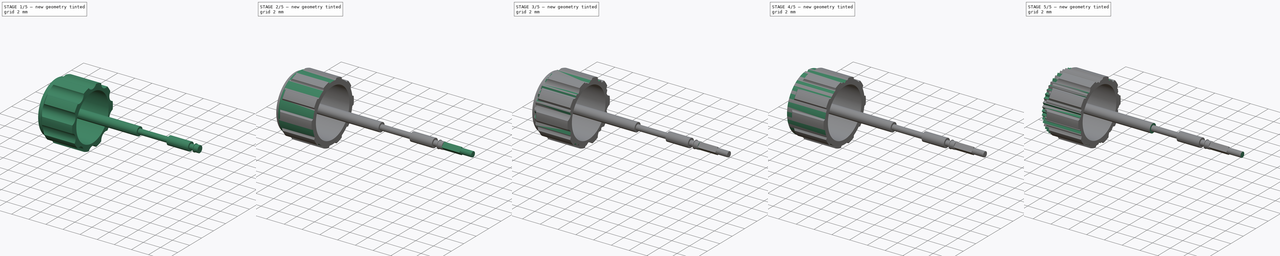
[diagram: build sequence overview — one tinted view per stage of 5, left to right]
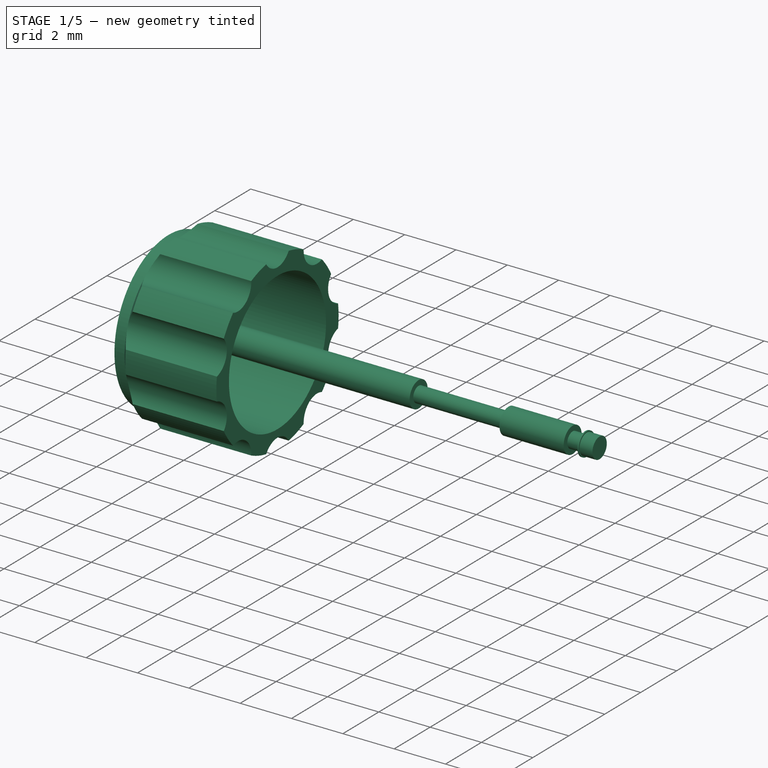
[diagram: stage 1 of 5 — iso view after this stage's code; geometry added in this stage tinted green]
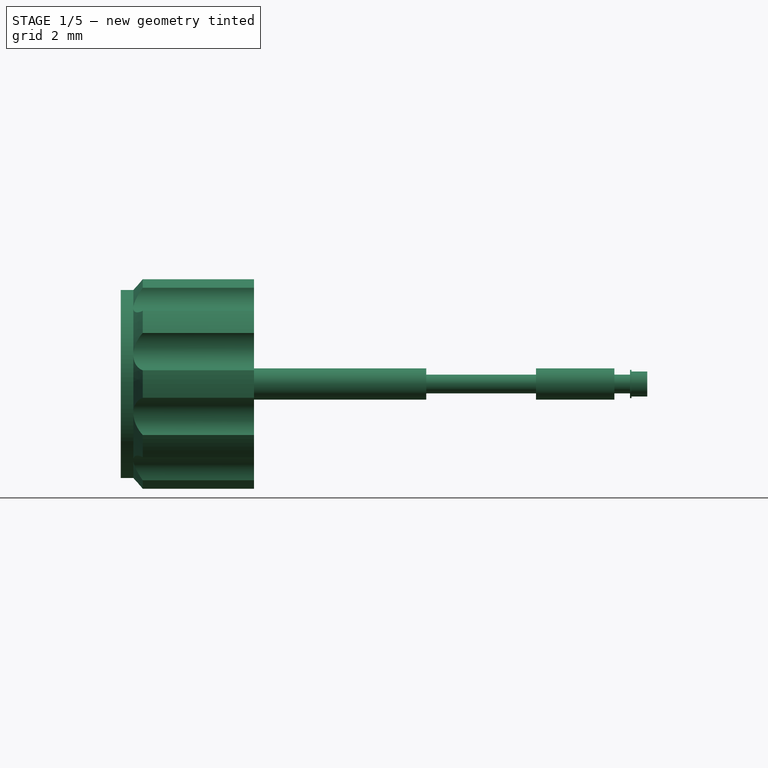
[diagram: stage 1 of 5 — front view after this stage's code; geometry added in this stage tinted green]
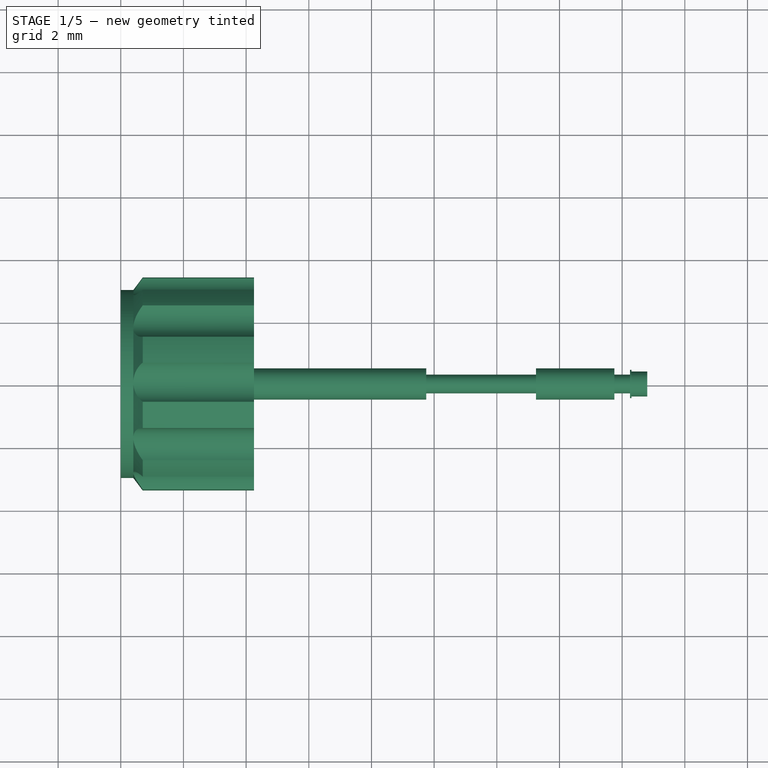
[diagram: stage 1 of 5 — top view after this stage's code; geometry added in this stage tinted green]
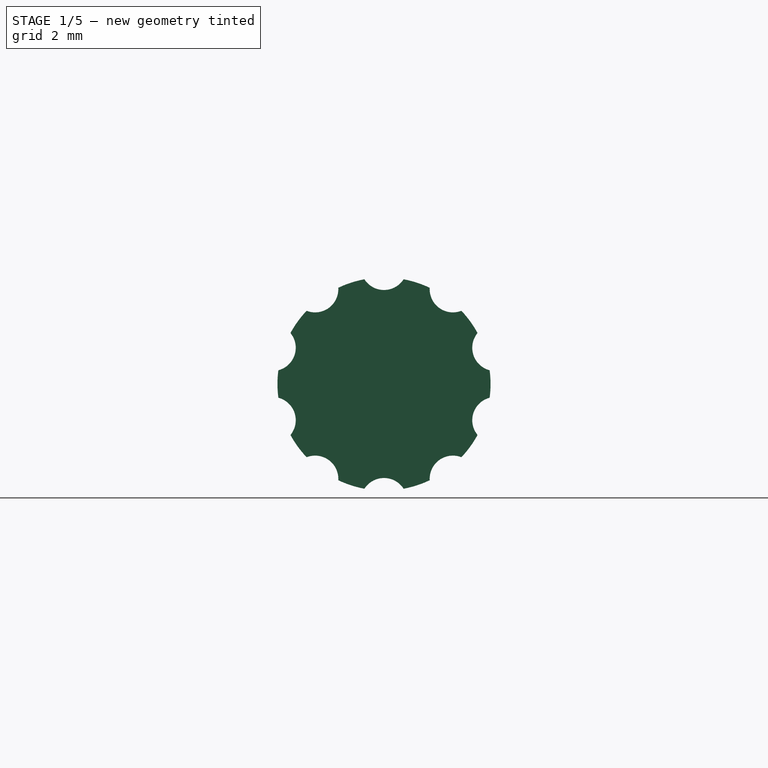
[diagram: stage 1 of 5 — right view after this stage's code; geometry added in this stage tinted green]
FCSTD DOCUMENT  (FreeCAD 0.19R20415 (Git))
Label: Vostok_Amphibia_Crown_1
License: All rights reserved
LicenseURL: http://en.wikipedia.org/wiki/All_rights_reserved
objects: Sketcher::SketchObject×16, PartDesign::Revolution×6, PartDesign::Pad×6, PartDesign::Pocket×4, PartDesign::PolarPattern×3, PartDesign::Body×3
note: 54 computed .brp shape members not serialized (recipe doc carries the construction recipe); baked Part::Feature solids carry a one-line shape summary decoded from their .brp

FEATURE [PartDesign::Body] Body005  label="Crown001"
  Group = -> [Sketch031,Sketch030,Sketch032,Sketch033,Sketch034,Revolution002,Sketch036,Pocket001,Pocket002,PolarPattern001,Revolution003,Pad002,Pad003]
  Origin = -> Origin005
  Tip = -> Pad003
FEATURE [Sketcher::SketchObject] Sketch037
  AttachmentOffset = pos=(0.5,0,0) rot=(0,0,1;0rad)
  MapMode = 5
  Placement = pos=(0.5,0,0) rot=(1,0,0;1.5708rad)
  Support = -> [XZ_Plane006]
  sketch-geometry (14):
    g0: LineSegment StartX=16.3 StartY=0 StartZ=0 EndX=16.3 EndY=0.4 EndZ=0
    g1: LineSegment StartX=16.3 StartY=0.4 StartZ=0 EndX=15.8 EndY=0.4 EndZ=0
    g2: LineSegment StartX=15.8 StartY=0.4 StartZ=0 EndX=15.8 EndY=0.45 EndZ=0
    g3: LineSegment StartX=15.8 StartY=0.45 StartZ=0 EndX=15.75 EndY=0.45 EndZ=0
    g4: LineSegment StartX=15.75 StartY=0.45 StartZ=0 EndX=15.75 EndY=0.3 EndZ=0
    g5: LineSegment StartX=15.75 StartY=0.3 StartZ=0 EndX=15.25 EndY=0.3 EndZ=0
    g6: LineSegment StartX=15.25 StartY=0.3 StartZ=0 EndX=15.25 EndY=0.5 EndZ=0
    g7: LineSegment StartX=15.25 StartY=0.5 StartZ=0 EndX=12.75 EndY=0.5 EndZ=0
    g8: LineSegment StartX=12.75 StartY=0.5 StartZ=0 EndX=12.75 EndY=0.3 EndZ=0
    g9: LineSegment StartX=12.75 StartY=0.3 StartZ=0 EndX=9.25 EndY=0.3 EndZ=0
    g10: LineSegment StartX=9.25 StartY=0.3 StartZ=0 EndX=9.25 EndY=0.5 EndZ=0
    g11: LineSegment StartX=9.25 StartY=0.5 StartZ=0 EndX=0 EndY=0.5 EndZ=0
    g12: LineSegment StartX=0 StartY=0.5 StartZ=0 EndX=0 EndY=0 EndZ=0
    g13: LineSegment StartX=0 StartY=0 StartZ=0 EndX=16.3 EndY=0 EndZ=0
  constraints (41):
    c: DistanceX(g13,g13) = 16.3
    c: DistanceY(g10) = 0.5
    c: DistanceY(g8) = 0.3
    c: Coincident(g11,g10)
    c: Vertical(g10)
    c: DistanceX(g11,g11) = 9.25
    c: Coincident(g11,g12)
    c: Vertical(g12)
    c: Coincident(g12,g13)
    c: Coincident(g-1,g12)
    c: Coincident(g9,g10)
    c: DistanceX(g9,g9) = 3.5
    c: Coincident(g9,g8)
    c: Vertical(g8)
    c: Horizontal(g7,g10)
    c: Coincident(g7,g8)
    c: DistanceX(g7,g7) = 2.5
    c: DistanceY(g6,g6) = 0.2
    c: Coincident(g6,g7)
    c: Horizontal(g7)
    c: Coincident(g5,g6)
    c: Vertical(g6)
    c: Horizontal(g5)
    c: DistanceX(g5,g4) = 0.5
    c: Coincident(g5,g4)
    c: DistanceY(g4,g3) = 0.15
    c: Vertical(g4)
    c: Coincident(g3,g4)
    c: DistanceX(g3,g3) = 0.05
    c: Vertical(g2)
    c: Coincident(g2,g3)
    c: Horizontal(g3)
    c: DistanceY(g2,g2) = 0.05
    c: Coincident(g1,g2)
    c: Horizontal(g1)
    c: Coincident(g0,g1)
    c: Coincident(g13,g0)
    c: Horizontal(g9)
    c: Horizontal(g11)
    c: Horizontal(g13)
    c: Vertical(g0)
FEATURE [Sketcher::SketchObject] Sketch038
  MapMode = 5
  Placement = pos=(0,0,0) rot=(-0.57735,0.57735,0.57735;4.18879rad)
  Support = -> [YZ_Plane007]
  sketch-geometry (7):
    g0: GeomPoint X=0 Y=3.4 Z=0
    g1: LineSegment StartX=-0.625 StartY=3.34206 StartZ=0 EndX=-0.625 EndY=4.59206 EndZ=0
    g2: LineSegment StartX=-0.625 StartY=4.59206 StartZ=0 EndX=0.625 EndY=4.59206 EndZ=0
    g3: LineSegment StartX=0.625 StartY=4.59206 StartZ=0 EndX=0.625 EndY=3.34206 EndZ=0
    g4: ArcOfCircle [constr] CenterX=0 CenterY=0 CenterZ=0 NormalX=0 NormalY=0 NormalZ=1 AngleXU=0 Radius=3.4 StartAngle=1.38592 EndAngle=1.75567
    g5: ArcOfCircle CenterX=-2e-16 CenterY=3.74202 CenterZ=0 NormalX=0 NormalY=0 NormalZ=1 AngleXU=0 Radius=0.742017 StartAngle=3.71086 EndAngle=5.71392
    g6: GeomPoint X=0 Y=3 Z=0
  constraints (19):
    c: PointOnObject(g0,g-2)
    c: Vertical(g1)
    c: Coincident(g1,g2)
    c: Horizontal(g2)
    c: Coincident(g2,g3)
    c: Vertical(g3)
    c: Equal(g3,g2)
    c: Coincident(g4,g-1)
    c: Radius(g4) = 3.4
    c: PointOnObject(g0,g4)
    c: Symmetric(g3,g1,g-2)
    c: Coincident(g1,g4)
    c: Coincident(g4,g3)
    c: DistanceX(g1,g3) = 1.25
    c: Coincident(g5,g1)
    c: Coincident(g5,g3)
    c: PointOnObject(g6,g5)
    c: PointOnObject(g6,g-2)
    c: DistanceY(g6,g0) = 0.4
FEATURE [Sketcher::SketchObject] Sketch039
  AttachmentOffset = pos=(0,0,16.8) rot=(0,0,1;0rad)
  MapMode = 5
  Placement = pos=(16.8,-3.7e-15,3.7e-15) rot=(0.57735,0.57735,0.57735;2.0944rad)
  Support = -> [YZ_Plane007]
  sketch-geometry (4):
    g0: LineSegment StartX=-0.424264 StartY=0 StartZ=0 EndX=0 EndY=0.424264 EndZ=0
    g1: LineSegment StartX=0 StartY=0.424264 StartZ=0 EndX=0.424264 EndY=0 EndZ=0
    g2: LineSegment StartX=0.424264 StartY=0 StartZ=0 EndX=0 EndY=-0.424264 EndZ=0
    g3: LineSegment StartX=0 StartY=-0.424264 StartZ=0 EndX=-0.424264 EndY=0 EndZ=0
  constraints (11):
    c: PointOnObject(g0,g-1)
    c: PointOnObject(g0,g-2)
    c: Coincident(g0,g1)
    c: Coincident(g1,g2)
    c: PointOnObject(g2,g-2)
    c: Coincident(g2,g3)
    c: Coincident(g3,g0)
    c: Perpendicular(g1,g0)
    c: Perpendicular(g3,g2)
    c: Symmetric(g0,g1,g-1)
    c: Distance(g0) = 0.6
FEATURE [Sketcher::SketchObject] Sketch040
  MapMode = 5
  Placement = pos=(0,0,0) rot=(1,0,0;1.5708rad)
  Support = -> [XZ_Plane006]
  sketch-geometry (8):
    g0: LineSegment StartX=0.7 StartY=0 StartZ=0 EndX=0 EndY=0 EndZ=0
    g1: LineSegment StartX=4.25 StartY=3.4 StartZ=0 EndX=4.25 EndY=2.7 EndZ=0
    g2: LineSegment StartX=4.25 StartY=2.7 StartZ=0 EndX=0.7 EndY=2.7 EndZ=0
    g3: LineSegment StartX=0.7 StartY=2.7 StartZ=0 EndX=0.7 EndY=0 EndZ=0
    g4: LineSegment StartX=4.25 StartY=3.4 StartZ=0 EndX=0.7 EndY=3.4 EndZ=0
    g5: LineSegment StartX=0 StartY=0 StartZ=0 EndX=0 EndY=3 EndZ=0
    g6: LineSegment StartX=0 StartY=3 StartZ=0 EndX=0.4 EndY=3 EndZ=0
    g7: LineSegment StartX=0.4 StartY=3 StartZ=0 EndX=0.7 EndY=3.4 EndZ=0
  constraints (23):
    c: PointOnObject(g0,g-1)
    c: Coincident(g0,g-1)
    c: Vertical(g1)
    c: Coincident(g1,g2)
    c: Horizontal(g2)
    c: Coincident(g2,g3)
    c: Coincident(g3,g0)
    c: Vertical(g3)
    c: DistanceY(g1) = 2.7
    c: DistanceY(g1) = 3.4
    c: Equal(g0,g1)
    c: DistanceX(g0,g1) = 4.25
    c: Coincident(g1,g4)
    c: Horizontal(g4)
    c: Coincident(g0,g5)
    c: PointOnObject(g5,g-2)
    c: Coincident(g5,g6)
    c: Horizontal(g6)
    c: Coincident(g6,g7)
    c: Coincident(g7,g4)
    c: DistanceX(g6,g6) = 0.4
    c: DistanceX(g6,g4) = 0.3
    c: DistanceY(g5) = 3
FEATURE [Sketcher::SketchObject] Sketch042
  AttachmentOffset = pos=(0,0,18.8) rot=(0,0,1;0rad)
  MapMode = 5
  Placement = pos=(18.8,-4.2e-15,4.2e-15) rot=(0.57735,0.57735,0.57735;2.0944rad)
  Support = -> [YZ_Plane007]
  sketch-geometry (1):
    g0: Circle CenterX=0 CenterY=0 CenterZ=0 NormalX=0 NormalY=0 NormalZ=1 AngleXU=0 Radius=0.3
  constraints (2):
    c: Coincident(g0,g-1)
    c: Radius(g0) = 0.3
FEATURE [PartDesign::Revolution] Revolution005
  Angle = 360
  Axis = (1,0,0)
  Base = (0,0,0)
  Placement = pos=(0,0,0) rot=(1,0,0;1.5708rad)
  Profile = -> Sketch040
  ReferenceAxis = -> X_Axis006
  Reversed = true
FEATURE [PartDesign::Pocket] Pocket004
  BaseFeature = -> Revolution005
  Length = 5
  Length2 = 100
  Placement = pos=(0,0,0) rot=(1,0,0;1.5708rad)
  Profile = -> Sketch038
  Type = 0
FEATURE [PartDesign::PolarPattern] PolarPattern002
  Angle = 360
  Axis = -> Sketch038 [N_Axis]
  BaseFeature = -> Pocket004
  Occurrences = 10
  Originals = -> [Pocket004]
  Placement = pos=(0,0,0) rot=(1,0,0;1.5708rad)
FEATURE [PartDesign::Revolution] Revolution004
  Angle = 360
  Axis = (1,0,0)
  Base = (0,0,0)
  BaseFeature = -> PolarPattern002
  Placement = pos=(0,0,0) rot=(1,0,0;1.5708rad)
  Profile = -> Sketch037
  ReferenceAxis = -> X_Axis006
  Reversed = true
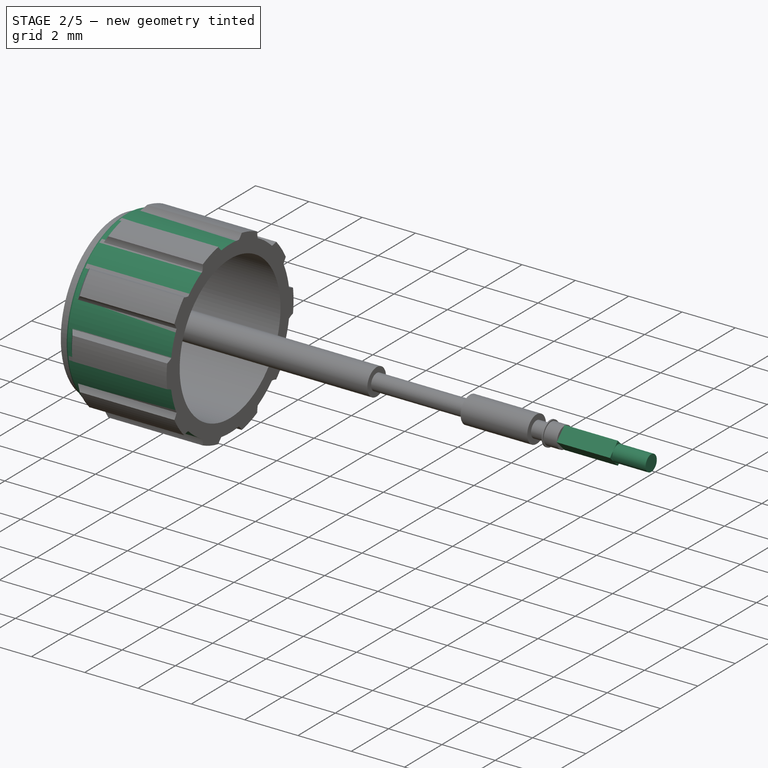
[diagram: stage 2 of 5 — iso view after this stage's code; geometry added in this stage tinted green]
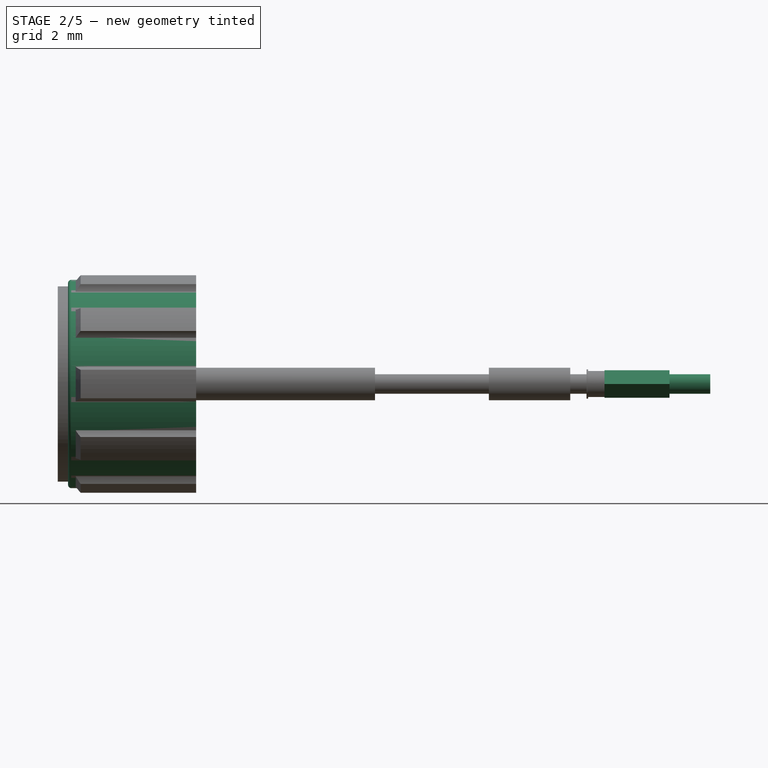
[diagram: stage 2 of 5 — front view after this stage's code; geometry added in this stage tinted green]
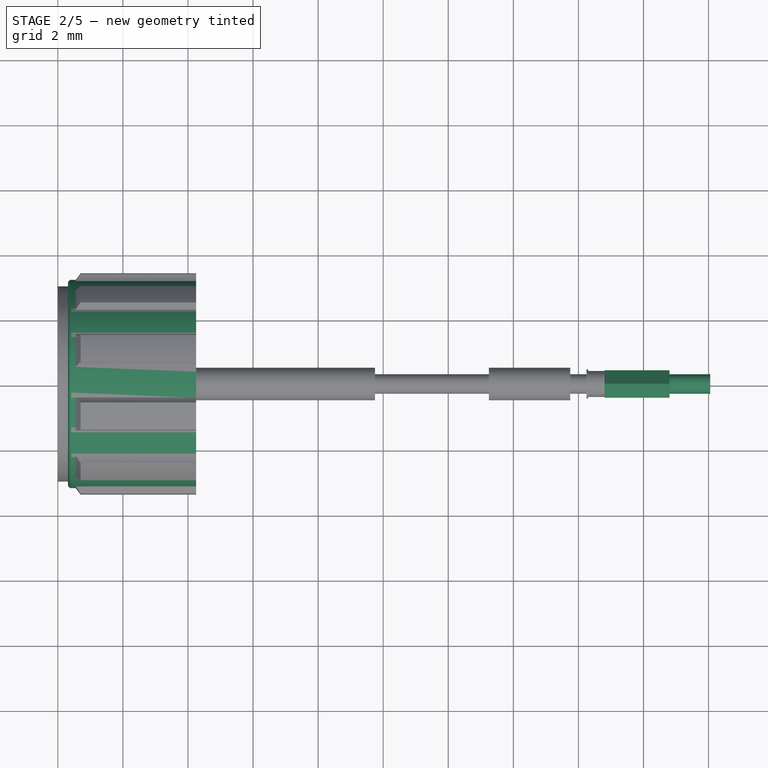
[diagram: stage 2 of 5 — top view after this stage's code; geometry added in this stage tinted green]
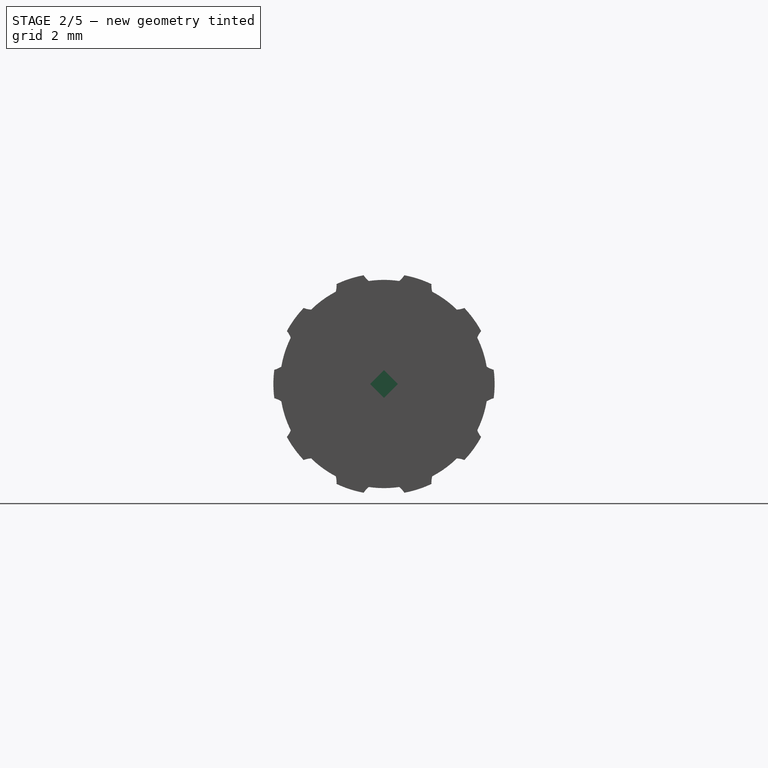
[diagram: stage 2 of 5 — right view after this stage's code; geometry added in this stage tinted green]
FEATURE [PartDesign::Body] Body004  label="Crown"
  Group = -> [Sketch025,Sketch,Sketch027,Sketch028,Sketch029,Revolution,Pocket,PolarPattern,Revolution001,Pad,Pad001]
  Origin = -> Origin004
  Tip = -> Pad001
FEATURE [Sketcher::SketchObject] Sketch030
  AttachmentOffset = pos=(0.5,0,0) rot=(0,0,1;0rad)
  MapMode = 5
  Placement = pos=(0.5,0,0) rot=(1,0,0;1.5708rad)
  Support = -> [XZ_Plane005]
  sketch-geometry (14):
    g0: LineSegment StartX=16.3 StartY=0 StartZ=0 EndX=16.3 EndY=0.4 EndZ=0
    g1: LineSegment StartX=16.3 StartY=0.4 StartZ=0 EndX=15.8 EndY=0.4 EndZ=0
    g2: LineSegment StartX=15.8 StartY=0.4 StartZ=0 EndX=15.8 EndY=0.45 EndZ=0
    g3: LineSegment StartX=15.8 StartY=0.45 StartZ=0 EndX=15.75 EndY=0.45 EndZ=0
    g4: LineSegment StartX=15.75 StartY=0.45 StartZ=0 EndX=15.75 EndY=0.3 EndZ=0
    g5: LineSegment StartX=15.75 StartY=0.3 StartZ=0 EndX=15.25 EndY=0.3 EndZ=0
    g6: LineSegment StartX=15.25 StartY=0.3 StartZ=0 EndX=15.25 EndY=0.5 EndZ=0
    g7: LineSegment StartX=15.25 StartY=0.5 StartZ=0 EndX=12.75 EndY=0.5 EndZ=0
    g8: LineSegment StartX=12.75 StartY=0.5 StartZ=0 EndX=12.75 EndY=0.3 EndZ=0
    g9: LineSegment StartX=12.75 StartY=0.3 StartZ=0 EndX=9.25 EndY=0.3 EndZ=0
    g10: LineSegment StartX=9.25 StartY=0.3 StartZ=0 EndX=9.25 EndY=0.5 EndZ=0
    g11: LineSegment StartX=9.25 StartY=0.5 StartZ=0 EndX=0 EndY=0.5 EndZ=0
    g12: LineSegment StartX=0 StartY=0.5 StartZ=0 EndX=0 EndY=0 EndZ=0
    g13: LineSegment StartX=0 StartY=0 StartZ=0 EndX=16.3 EndY=0 EndZ=0
  constraints (41):
    c: DistanceX(g13,g13) = 16.3
    c: DistanceY(g10) = 0.5
    c: DistanceY(g8) = 0.3
    c: Coincident(g11,g10)
    c: Vertical(g10)
    c: DistanceX(g11,g11) = 9.25
    c: Coincident(g11,g12)
    c: Vertical(g12)
    c: Coincident(g12,g13)
    c: Coincident(g-1,g12)
    c: Coincident(g9,g10)
    c: DistanceX(g9,g9) = 3.5
    c: Coincident(g9,g8)
    c: Vertical(g8)
    c: Horizontal(g7,g10)
    c: Coincident(g7,g8)
    c: DistanceX(g7,g7) = 2.5
    c: DistanceY(g6,g6) = 0.2
    c: Coincident(g6,g7)
    c: Horizontal(g7)
    c: Coincident(g5,g6)
    c: Vertical(g6)
    c: Horizontal(g5)
    c: DistanceX(g5,g4) = 0.5
    c: Coincident(g5,g4)
    c: DistanceY(g4,g3) = 0.15
    c: Vertical(g4)
    c: Coincident(g3,g4)
    c: DistanceX(g3,g3) = 0.05
    c: Vertical(g2)
    c: Coincident(g2,g3)
    c: Horizontal(g3)
    c: DistanceY(g2,g2) = 0.05
    c: Coincident(g1,g2)
    c: Horizontal(g1)
    c: Coincident(g0,g1)
    c: Coincident(g13,g0)
    c: Horizontal(g9)
    c: Horizontal(g11)
    c: Horizontal(g13)
    c: Vertical(g0)
FEATURE [Sketcher::SketchObject] Sketch031
  MapMode = 5
  Placement = pos=(0,0,0) rot=(-0.57735,0.57735,0.57735;4.18879rad)
  Support = -> [YZ_Plane005]
  sketch-geometry (8):
    g0: GeomPoint X=0 Y=3.2 Z=0
    g1: GeomPoint X=0 Y=2.95 Z=0
    g2: LineSegment StartX=-0.348374 StartY=3.18098 StartZ=0 EndX=-0.348374 EndY=3.87773 EndZ=0
    g3: LineSegment StartX=-0.348374 StartY=3.87773 StartZ=0 EndX=0.348374 EndY=3.87773 EndZ=0
    g4: LineSegment StartX=0.348374 StartY=3.87773 StartZ=0 EndX=0.348374 EndY=3.18098 EndZ=0
    g5: ArcOfCircle [constr] CenterX=0 CenterY=0 CenterZ=0 NormalX=0 NormalY=0 NormalZ=1 AngleXU=0 Radius=3.2 StartAngle=1.46171 EndAngle=1.67988
    g6: LineSegment StartX=-0.348374 StartY=3.18098 StartZ=0 EndX=0 EndY=2.95 EndZ=0
    g7: LineSegment StartX=0 StartY=2.95 StartZ=0 EndX=0.348374 EndY=3.18098 EndZ=0
  constraints (20):
    c: PointOnObject(g0,g-2)
    c: PointOnObject(g1,g-2)
    c: DistanceY(g1,g0) = 0.25
    c: Vertical(g2)
    c: Coincident(g2,g3)
    c: Horizontal(g3)
    c: Coincident(g3,g4)
    c: Vertical(g4)
    c: Equal(g4,g3)
    c: Coincident(g5,g-1)
    c: Radius(g5) = 3.2
    c: PointOnObject(g0,g5)
    c: Symmetric(g4,g2,g-2)
    c: Coincident(g2,g5)
    c: Coincident(g5,g4)
    c: Coincident(g7,g6)
    c: Coincident(g6,g1)
    c: Symmetric(g6,g7,g-2)
    c: Coincident(g6,g2)
    c: Angle(g5) = 0.218166
FEATURE [Sketcher::SketchObject] Sketch032
  AttachmentOffset = pos=(0,0,16.8) rot=(0,0,1;0rad)
  MapMode = 5
  Placement = pos=(16.8,-3.7e-15,3.7e-15) rot=(0.57735,0.57735,0.57735;2.0944rad)
  Support = -> [YZ_Plane005]
  sketch-geometry (4):
    g0: LineSegment StartX=-0.424264 StartY=0 StartZ=0 EndX=0 EndY=0.424264 EndZ=0
    g1: LineSegment StartX=0 StartY=0.424264 StartZ=0 EndX=0.424264 EndY=0 EndZ=0
    g2: LineSegment StartX=0.424264 StartY=0 StartZ=0 EndX=0 EndY=-0.424264 EndZ=0
    g3: LineSegment StartX=0 StartY=-0.424264 StartZ=0 EndX=-0.424264 EndY=0 EndZ=0
  constraints (11):
    c: PointOnObject(g0,g-1)
    c: PointOnObject(g0,g-2)
    c: Coincident(g0,g1)
    c: Coincident(g1,g2)
    c: PointOnObject(g2,g-2)
    c: Coincident(g2,g3)
    c: Coincident(g3,g0)
    c: Perpendicular(g1,g0)
    c: Perpendicular(g3,g2)
    c: Symmetric(g0,g1,g-1)
    c: Distance(g0) = 0.6
FEATURE [Sketcher::SketchObject] Sketch033
  AttachmentOffset = pos=(0,0,18.8) rot=(0,0,1;0rad)
  MapMode = 5
  Placement = pos=(18.8,-4.2e-15,4.2e-15) rot=(0.57735,0.57735,0.57735;2.0944rad)
  Support = -> [YZ_Plane005]
  sketch-geometry (1):
    g0: Circle CenterX=0 CenterY=0 CenterZ=0 NormalX=0 NormalY=0 NormalZ=1 AngleXU=0 Radius=0.3
  constraints (2):
    c: Coincident(g0,g-1)
    c: Radius(g0) = 0.3
FEATURE [Sketcher::SketchObject] Sketch034
  MapMode = 5
  Placement = pos=(0,0,0) rot=(1,0,0;1.5708rad)
  Support = -> [XZ_Plane005]
  sketch-geometry (10):
    g0: LineSegment StartX=0.5 StartY=0 StartZ=0 EndX=0 EndY=0 EndZ=0
    g1: LineSegment StartX=4.25 StartY=3.2 StartZ=0 EndX=4.25 EndY=2.7 EndZ=0
    g2: LineSegment StartX=4.25 StartY=2.7 StartZ=0 EndX=0.5 EndY=2.7 EndZ=0
    g3: LineSegment StartX=0.5 StartY=2.7 StartZ=0 EndX=0.5 EndY=0 EndZ=0
    g4: ArcOfCircle CenterX=20 CenterY=0 CenterZ=0 NormalX=0 NormalY=0 NormalZ=1 AngleXU=0 Radius=20 StartAngle=3.00144 EndAngle=3.14159
    g5: LineSegment StartX=4.25 StartY=3.2 StartZ=0 EndX=0.415138 EndY=3.2 EndZ=0
    g6: LineSegment StartX=0.315138 StartY=3.1 StartZ=0 EndX=0.315138 EndY=2.9 EndZ=0
    g7: ArcOfCircle CenterX=0.415138 CenterY=3.1 CenterZ=0 NormalX=0 NormalY=0 NormalZ=1 AngleXU=0 Radius=0.1 StartAngle=1.5708 EndAngle=3.14159
    g8: ArcOfCircle CenterX=0.295138 CenterY=2.9 CenterZ=0 NormalX=0 NormalY=0 NormalZ=1 AngleXU=0 Radius=0.02 StartAngle=4.71239 EndAngle=6.28319
    g9: ArcOfCircle CenterX=0.295138 CenterY=2.78 CenterZ=0 NormalX=0 NormalY=0 NormalZ=1 AngleXU=0 Radius=0.1 StartAngle=1.5708 EndAngle=3.00144
  constraints (28):
    c: PointOnObject(g0,g-1)
    c: Coincident(g0,g-1)
    c: Vertical(g1)
    c: Coincident(g1,g2)
    c: Horizontal(g2)
    c: Coincident(g2,g3)
    c: Coincident(g3,g0)
    c: Vertical(g3)
    c: DistanceY(g1) = 2.7
    c: DistanceY(g1) = 3.2
    c: Equal(g0,g1)
    c: DistanceX(g0,g1) = 4.25
    c: PointOnObject(g4,g-1)
    c: Coincident(g4,g0)
    c: Coincident(g1,g5)
    c: Horizontal(g5)
    c: Vertical(g6)
    c: Tangent(g5,g7) = -1.5708
    c: Tangent(g6,g7) = -1.5708
    c: Tangent(g6,g8) = 1.5708
    c: Tangent(g4,g9) = -1.5708
    c: Equal(g9,g7)
    c: Radius(g7) = 0.1
    c: Radius(g8) = 0.02
    c: DistanceY(g6,g6) = 0.2
    c: Radius(g4) = 20
    c: Tangent(g9,g8) = 1.5708
    c: Vertical(g9,g8)
FEATURE [PartDesign::Revolution] Revolution002
  Angle = 360
  Axis = (1,0,0)
  Base = (0,0,0)
  Placement = pos=(0,0,0) rot=(1,0,0;1.5708rad)
  Profile = -> Sketch034
  ReferenceAxis = -> X_Axis005
  Reversed = true
FEATURE [Sketcher::SketchObject] Sketch036
  MapMode = 5
  Placement = pos=(0,0,0) rot=(-0.57735,0.57735,0.57735;4.18879rad)
  Support = -> [YZ_Plane004]
  sketch-geometry (103):
    g0: BSplineCurve PolesCount=4 KnotsCount=2 Degree=3 IsPeriodic=0
    g1: BSplineCurve PolesCount=4 KnotsCount=2 Degree=3 IsPeriodic=0
    g2: BSplineCurve PolesCount=4 KnotsCount=2 Degree=3 IsPeriodic=0
    g3: BSplineCurve PolesCount=4 KnotsCount=2 Degree=3 IsPeriodic=0
    g4: BSplineCurve PolesCount=4 KnotsCount=2 Degree=3 IsPeriodic=0
    g5: BSplineCurve PolesCount=4 KnotsCount=2 Degree=3 IsPeriodic=0
    g6: BSplineCurve PolesCount=4 KnotsCount=2 Degree=3 IsPeriodic=0
    g7: BSplineCurve PolesCount=4 KnotsCount=2 Degree=3 IsPeriodic=0
    g8: BSplineCurve PolesCount=4 KnotsCount=2 Degree=3 IsPeriodic=0
    g9: BSplineCurve PolesCount=4 KnotsCount=2 Degree=3 IsPeriodic=0
    g10: BSplineCurve PolesCount=4 KnotsCount=2 Degree=3 IsPeriodic=0
    g11: BSplineCurve PolesCount=4 KnotsCount=2 Degree=3 IsPeriodic=0
    g12: BSplineCurve PolesCount=4 KnotsCount=2 Degree=3 IsPeriodic=0
    g13: BSplineCurve PolesCount=4 KnotsCount=2 Degree=3 IsPeriodic=0
    g14: BSplineCurve PolesCount=4 KnotsCount=2 Degree=3 IsPeriodic=0
    g15: BSplineCurve PolesCount=4 KnotsCount=2 Degree=3 IsPeriodic=0
    g16: BSplineCurve PolesCount=4 KnotsCount=2 Degree=3 IsPeriodic=0
    g17: BSplineCurve PolesCount=4 KnotsCount=2 Degree=3 IsPeriodic=0
    g18: BSplineCurve PolesCount=4 KnotsCount=2 Degree=3 IsPeriodic=0
    g19: BSplineCurve PolesCount=4 KnotsCount=2 Degree=3 IsPeriodic=0
    g20: BSplineCurve PolesCount=4 KnotsCount=2 Degree=3 IsPeriodic=0
    g21: BSplineCurve PolesCount=4 KnotsCount=2 Degree=3 IsPeriodic=0
    g22: BSplineCurve PolesCount=4 KnotsCount=2 Degree=3 IsPeriodic=0
    g23: BSplineCurve PolesCount=4 KnotsCount=2 Degree=3 IsPeriodic=0
    g24: BSplineCurve PolesCount=4 KnotsCount=2 Degree=3 IsPeriodic=0
    g25: BSplineCurve PolesCount=4 KnotsCount=2 Degree=3 IsPeriodic=0
    g26: BSplineCurve PolesCount=4 KnotsCount=2 Degree=3 IsPeriodic=0
    g27: BSplineCurve PolesCount=4 KnotsCount=2 Degree=3 IsPeriodic=0
    g28: BSplineCurve PolesCount=4 KnotsCount=2 Degree=3 IsPeriodic=0
    g29: BSplineCurve PolesCount=4 KnotsCount=2 Degree=3 IsPeriodic=0
    g30: BSplineCurve PolesCount=4 KnotsCount=2 Degree=3 IsPeriodic=0
    g31: BSplineCurve PolesCount=4 KnotsCount=2 Degree=3 IsPeriodic=0
    g32: BSplineCurve PolesCount=4 KnotsCount=2 Degree=3 IsPeriodic=0
    g33: BSplineCurve PolesCount=4 KnotsCount=2 Degree=3 IsPeriodic=0
    g34: BSplineCurve PolesCount=4 KnotsCount=2 Degree=3 IsPeriodic=0
    g35: BSplineCurve PolesCount=4 KnotsCount=2 Degree=3 IsPeriodic=0
    g36: BSplineCurve PolesCount=4 KnotsCount=2 Degree=3 IsPeriodic=0
    g37: BSplineCurve PolesCount=4 KnotsCount=2 Degree=3 IsPeriodic=0
    g38: BSplineCurve PolesCount=4 KnotsCount=2 Degree=3 IsPeriodic=0
    g39: BSplineCurve PolesCount=4 KnotsCount=2 Degree=3 IsPeriodic=0
    g40: BSplineCurve PolesCount=4 KnotsCount=2 Degree=3 IsPeriodic=0
    g41: BSplineCurve PolesCount=4 KnotsCount=2 Degree=3 IsPeriodic=0
    g42: BSplineCurve PolesCount=4 KnotsCount=2 Degree=3 IsPeriodic=0
    g43: BSplineCurve PolesCount=4 KnotsCount=2 Degree=3 IsPeriodic=0
    g44: BSplineCurve PolesCount=4 KnotsCount=2 Degree=3 IsPeriodic=0
    g45: BSplineCurve PolesCount=4 KnotsCount=2 Degree=3 IsPeriodic=0
    g46: BSplineCurve PolesCount=4 KnotsCount=2 Degree=3 IsPeriodic=0
    g47: BSplineCurve PolesCount=4 KnotsCount=2 Degree=3 IsPeriodic=0
    g48: BSplineCurve PolesCount=4 KnotsCount=2 Degree=3 IsPeriodic=0
    g49: BSplineCurve PolesCount=4 KnotsCount=2 Degree=3 IsPeriodic=0
    g50: BSplineCurve PolesCount=4 KnotsCount=2 Degree=3 IsPeriodic=0
    g51: BSplineCurve PolesCount=4 KnotsCount=2 Degree=3 IsPeriodic=0
    g52: BSplineCurve PolesCount=4 KnotsCount=2 Degree=3 IsPeriodic=0
    g53: BSplineCurve PolesCount=4 KnotsCount=2 Degree=3 IsPeriodic=0
    g54: BSplineCurve PolesCount=4 KnotsCount=2 Degree=3 IsPeriodic=0
    g55: BSplineCurve PolesCount=4 KnotsCount=2 Degree=3 IsPeriodic=0
    g56: BSplineCurve PolesCount=4 KnotsCount=2 Degree=3 IsPeriodic=0
    g57: BSplineCurve PolesCount=4 KnotsCount=2 Degree=3 IsPeriodic=0
    g58: BSplineCurve PolesCount=4 KnotsCount=2 Degree=3 IsPeriodic=0
    g59: BSplineCurve PolesCount=4 KnotsCount=2 Degree=3 IsPeriodic=0
    g60: BSplineCurve PolesCount=4 KnotsCount=2 Degree=3 IsPeriodic=0
    g61: BSplineCurve PolesCount=4 KnotsCount=2 Degree=3 IsPeriodic=0
    g62: BSplineCurve PolesCount=4 KnotsCount=2 Degree=3 IsPeriodic=0
    g63: BSplineCurve PolesCount=4 KnotsCount=2 Degree=3 IsPeriodic=0
    g64: BSplineCurve PolesCount=4 KnotsCount=2 Degree=3 IsPeriodic=0
    g65: BSplineCurve PolesCount=4 KnotsCount=2 Degree=3 IsPeriodic=0
    g66: BSplineCurve PolesCount=4 KnotsCount=2 Degree=3 IsPeriodic=0
    g67: BSplineCurve PolesCount=4 KnotsCount=2 Degree=3 IsPeriodic=0
    g68: BSplineCurve PolesCount=4 KnotsCount=2 Degree=3 IsPeriodic=0
    g69: BSplineCurve PolesCount=4 KnotsCount=2 Degree=3 IsPeriodic=0
    g70: BSplineCurve PolesCount=4 KnotsCount=2 Degree=3 IsPeriodic=0
    g71: BSplineCurve PolesCount=4 KnotsCount=2 Degree=3 IsPeriodic=0
    g72: BSplineCurve PolesCount=4 KnotsCount=2 Degree=3 IsPeriodic=0
    g73: BSplineCurve PolesCount=4 KnotsCount=2 Degree=3 IsPeriodic=0
    g74: BSplineCurve PolesCount=4 KnotsCount=2 Degree=3 IsPeriodic=0
    g75: BSplineCurve PolesCount=4 KnotsCount=2 Degree=3 IsPeriodic=0
    g76: BSplineCurve PolesCount=4 KnotsCount=2 Degree=3 IsPeriodic=0
    g77: BSplineCurve PolesCount=4 KnotsCount=2 Degree=3 IsPeriodic=0
    g78: BSplineCurve PolesCount=4 KnotsCount=2 Degree=3 IsPeriodic=0
    g79: BSplineCurve PolesCount=4 KnotsCount=2 Degree=3 IsPeriodic=0
    g80: BSplineCurve PolesCount=4 KnotsCount=2 Degree=3 IsPeriodic=0
    g81: BSplineCurve PolesCount=4 KnotsCount=2 Degree=3 IsPeriodic=0
    g82: BSplineCurve PolesCount=4 KnotsCount=2 Degree=3 IsPeriodic=0
    g83: BSplineCurve PolesCount=4 KnotsCount=2 Degree=3 IsPeriodic=0
    g84: BSplineCurve PolesCount=4 KnotsCount=2 Degree=3 IsPeriodic=0
    g85: BSplineCurve PolesCount=4 KnotsCount=2 Degree=3 IsPeriodic=0
    g86: BSplineCurve PolesCount=4 KnotsCount=2 Degree=3 IsPeriodic=0
    g87: BSplineCurve PolesCount=4 KnotsCount=2 Degree=3 IsPeriodic=0
    g88: BSplineCurve PolesCount=4 KnotsCount=2 Degree=3 IsPeriodic=0
    g89: BSplineCurve PolesCount=4 KnotsCount=2 Degree=3 IsPeriodic=0
    g90: BSplineCurve PolesCount=4 KnotsCount=2 Degree=3 IsPeriodic=0
    g91: BSplineCurve PolesCount=4 KnotsCount=2 Degree=3 IsPeriodic=0
    g92: BSplineCurve PolesCount=4 KnotsCount=2 Degree=3 IsPeriodic=0
    g93: BSplineCurve PolesCount=4 KnotsCount=2 Degree=3 IsPeriodic=0
    g94: BSplineCurve PolesCount=4 KnotsCount=2 Degree=3 IsPeriodic=0
    g95: BSplineCurve PolesCount=4 KnotsCount=2 Degree=3 IsPeriodic=0
    g96: BSplineCurve PolesCount=4 KnotsCount=2 Degree=3 IsPeriodic=0
    g97: BSplineCurve PolesCount=4 KnotsCount=2 Degree=3 IsPeriodic=0
    g98: BSplineCurve PolesCount=4 KnotsCount=2 Degree=3 IsPeriodic=0
    g99: BSplineCurve PolesCount=4 KnotsCount=2 Degree=3 IsPeriodic=0
    g100: BSplineCurve PolesCount=4 KnotsCount=2 Degree=3 IsPeriodic=0
    g101: BSplineCurve PolesCount=4 KnotsCount=2 Degree=3 IsPeriodic=0
    g102: BSplineCurve PolesCount=2 KnotsCount=2 Degree=1 IsPeriodic=0
  constraints (103):
    c: Coincident(g0,g1)
    c: Coincident(g1,g2)
    c: Coincident(g2,g3)
    c: Coincident(g3,g4)
    c: Coincident(g4,g5)
    c: Coincident(g5,g6)
    c: Coincident(g6,g7)
    c: Coincident(g7,g8)
    c: Coincident(g8,g9)
    c: Coincident(g9,g10)
    c: Coincident(g10,g11)
    c: Coincident(g11,g12)
    c: Coincident(g12,g13)
    c: Coincident(g13,g14)
    c: Coincident(g14,g15)
    c: Coincident(g15,g16)
    c: Coincident(g16,g17)
    c: Coincident(g17,g18)
    c: Coincident(g18,g19)
    c: Coincident(g19,g20)
    c: Coincident(g20,g21)
    c: Coincident(g21,g22)
    c: Coincident(g22,g23)
    c: Coincident(g23,g24)
    c: Coincident(g24,g25)
    c: Coincident(g25,g26)
    c: Coincident(g26,g27)
    c: Coincident(g27,g28)
    c: Coincident(g28,g29)
    c: Coincident(g29,g30)
    c: Coincident(g30,g31)
    c: Coincident(g31,g32)
    c: Coincident(g32,g33)
    c: Coincident(g33,g34)
    c: Coincident(g34,g35)
    c: Coincident(g35,g36)
    c: Coincident(g36,g37)
    c: Coincident(g37,g38)
    c: Coincident(g38,g39)
    c: Coincident(g39,g40)
    c: Coincident(g40,g41)
    c: Coincident(g41,g42)
    c: Coincident(g42,g43)
    c: Coincident(g43,g44)
    c: Coincident(g44,g45)
    c: Coincident(g45,g46)
    c: Coincident(g46,g47)
    c: Coincident(g47,g48)
    c: Coincident(g48,g49)
    c: Coincident(g49,g50)
    c: Coincident(g50,g51)
    c: Coincident(g51,g52)
    c: Coincident(g52,g53)
    c: Coincident(g53,g54)
    c: Coincident(g54,g55)
    c: Coincident(g55,g56)
    c: Coincident(g56,g57)
    c: Coincident(g57,g58)
    c: Coincident(g58,g59)
    c: Coincident(g59,g60)
    c: Coincident(g60,g61)
    c: Coincident(g61,g62)
    c: Coincident(g62,g63)
    c: Coincident(g63,g64)
    c: Coincident(g64,g65)
    c: Coincident(g65,g66)
    c: Coincident(g66,g67)
    c: Coincident(g67,g68)
    c: Coincident(g68,g69)
    c: Coincident(g69,g70)
    c: Coincident(g70,g71)
    c: Coincident(g71,g72)
    c: Coincident(g72,g73)
    c: Coincident(g73,g74)
    c: Coincident(g74,g75)
    c: Coincident(g75,g76)
    c: Coincident(g76,g77)
    c: Coincident(g77,g78)
    c: Coincident(g78,g79)
    c: Coincident(g79,g80)
    c: Coincident(g80,g81)
    c: Coincident(g81,g82)
    c: Coincident(g82,g83)
    c: Coincident(g83,g84)
    c: Coincident(g84,g85)
    c: Coincident(g85,g86)
    c: Coincident(g86,g87)
    c: Coincident(g87,g88)
    c: Coincident(g88,g89)
    c: Coincident(g89,g90)
    c: Coincident(g90,g91)
    c: Coincident(g91,g92)
    c: Coincident(g92,g93)
    c: Coincident(g93,g94)
    c: Coincident(g94,g95)
    c: Coincident(g95,g96)
    c: Coincident(g96,g97)
    c: Coincident(g97,g98)
    c: Coincident(g98,g99)
    c: Coincident(g99,g100)
    c: Coincident(g100,g101)
    c: Coincident(g101,g102)
    c: Coincident(g102,g0)
FEATURE [PartDesign::Pocket] Pocket001
  BaseFeature = -> Revolution002
  Length = 0.2
  Length2 = 100
  Placement = pos=(0,0,0) rot=(1,0,0;1.5708rad)
  Profile = -> Sketch036
  Type = 0
FEATURE [PartDesign::Pad] Pad004
  BaseFeature = -> Revolution004
  Length = 2
  Length2 = 100
  Placement = pos=(0,0,0) rot=(1,0,0;1.5708rad)
  Profile = -> Sketch039
  Type = 0
FEATURE [PartDesign::Pad] Pad005
  BaseFeature = -> Pad004
  Length = 1.25
  Length2 = 100
  Placement = pos=(0,0,0) rot=(1,0,0;1.5708rad)
  Profile = -> Sketch042
  Type = 0
FEATURE [PartDesign::Body] Body006  label="Crown002"
  Group = -> [Sketch038,Sketch037,Sketch039,Sketch042,Sketch040,Revolution005,Pocket004,PolarPattern002,Revolution004,Pad004,Pad005]
  Origin = -> Origin006
  Tip = -> Pad005
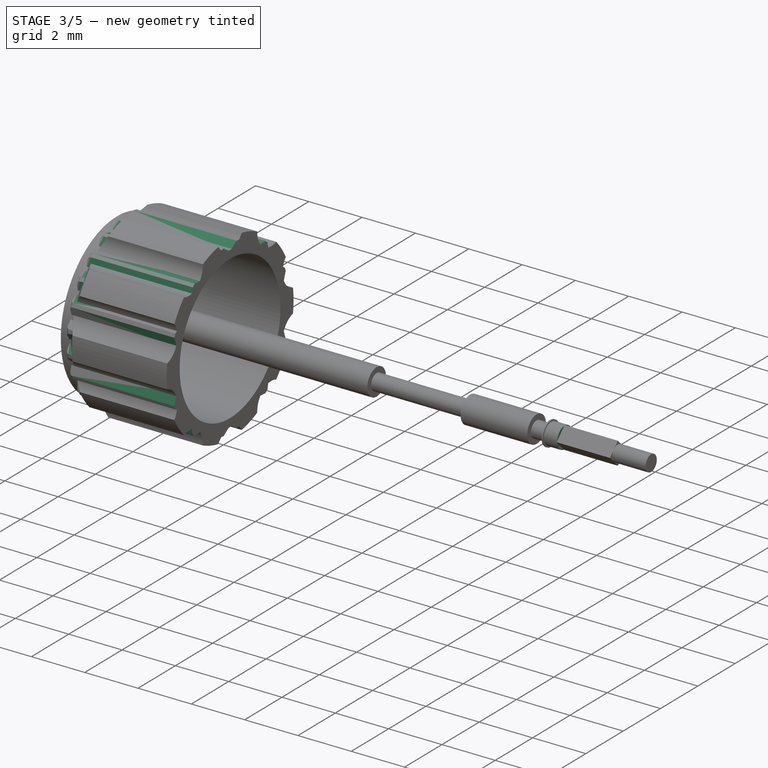
[diagram: stage 3 of 5 — iso view after this stage's code; geometry added in this stage tinted green]
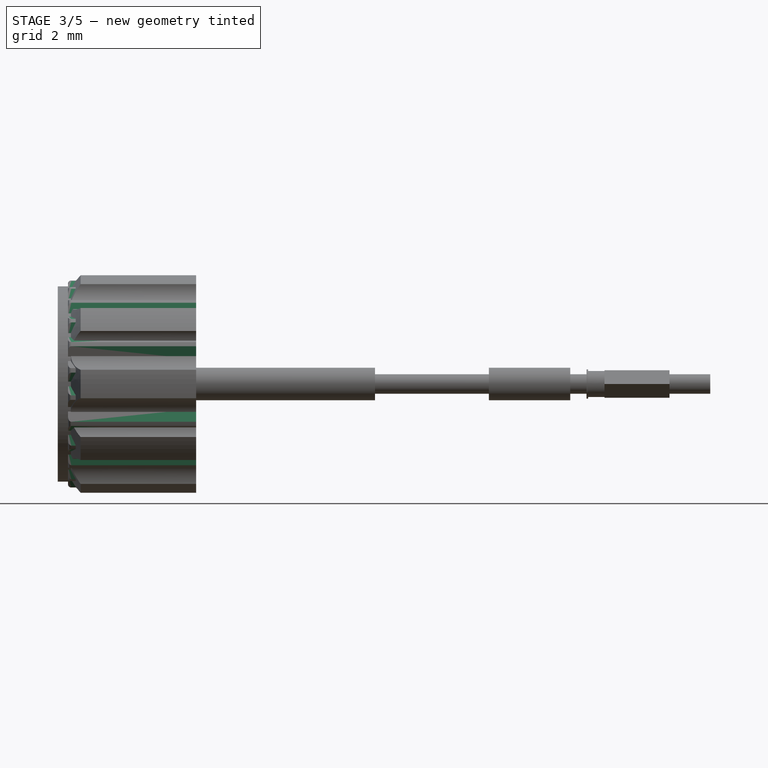
[diagram: stage 3 of 5 — front view after this stage's code; geometry added in this stage tinted green]
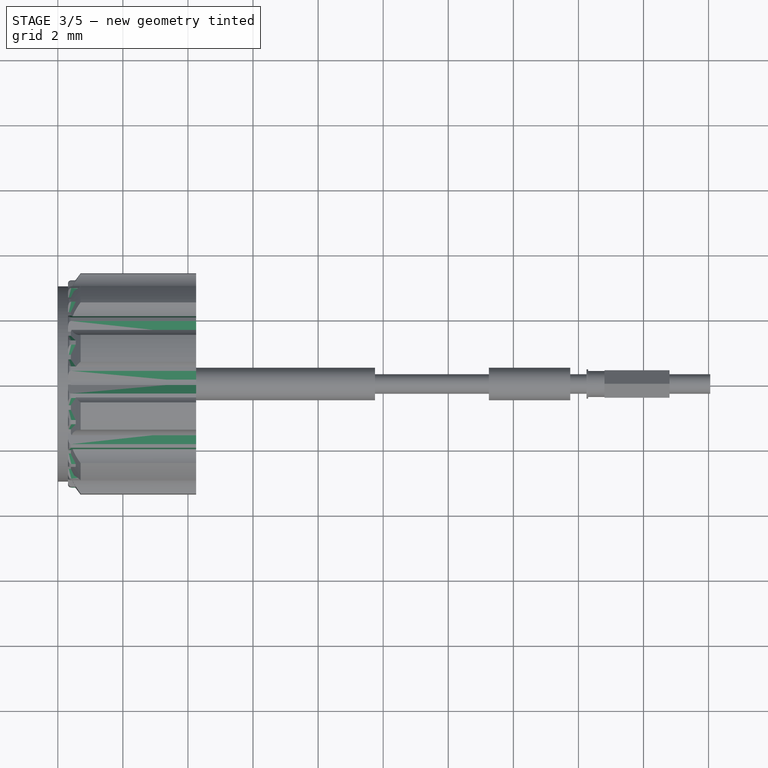
[diagram: stage 3 of 5 — top view after this stage's code; geometry added in this stage tinted green]
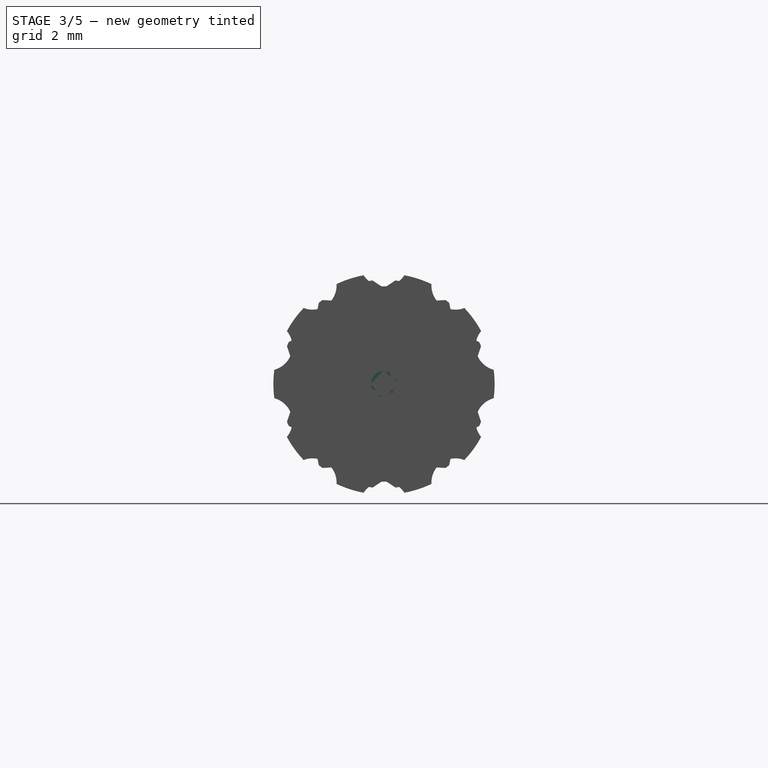
[diagram: stage 3 of 5 — right view after this stage's code; geometry added in this stage tinted green]
FEATURE [PartDesign::Pocket] Pocket002
  BaseFeature = -> Pocket001
  Length = 5
  Length2 = 100
  Placement = pos=(0,0,0) rot=(1,0,0;1.5708rad)
  Profile = -> Sketch031
  Type = 0
FEATURE [PartDesign::PolarPattern] PolarPattern001
  Angle = 360
  Axis = -> Sketch031 [N_Axis]
  BaseFeature = -> Pocket002
  Occurrences = 24
  Originals = -> [Pocket002]
  Placement = pos=(0,0,0) rot=(1,0,0;1.5708rad)
FEATURE [PartDesign::Revolution] Revolution003
  Angle = 360
  Axis = (1,0,0)
  Base = (0,0,0)
  BaseFeature = -> PolarPattern001
  Placement = pos=(0,0,0) rot=(1,0,0;1.5708rad)
  Profile = -> Sketch030
  ReferenceAxis = -> X_Axis005
  Reversed = true
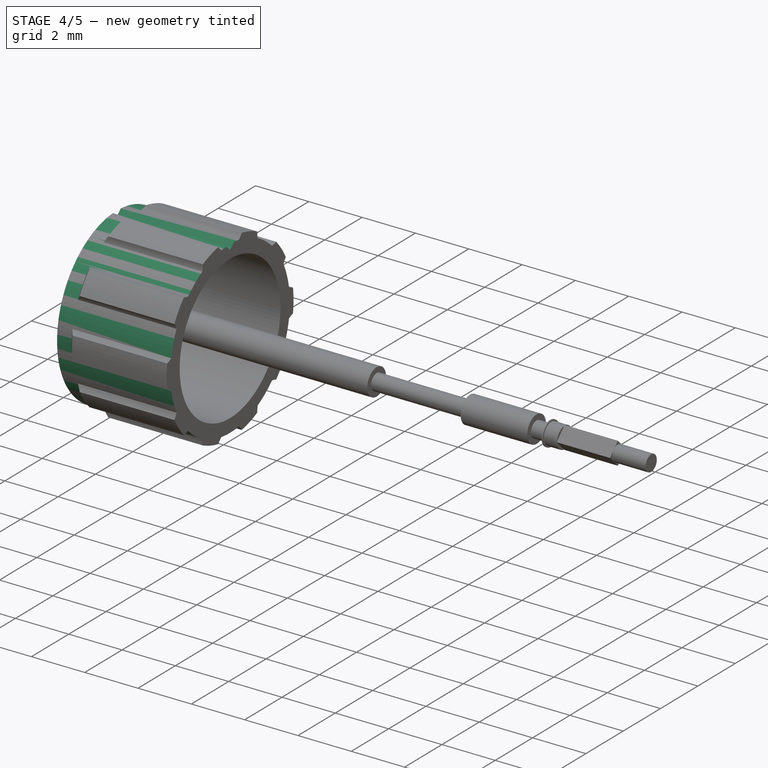
[diagram: stage 4 of 5 — iso view after this stage's code; geometry added in this stage tinted green]
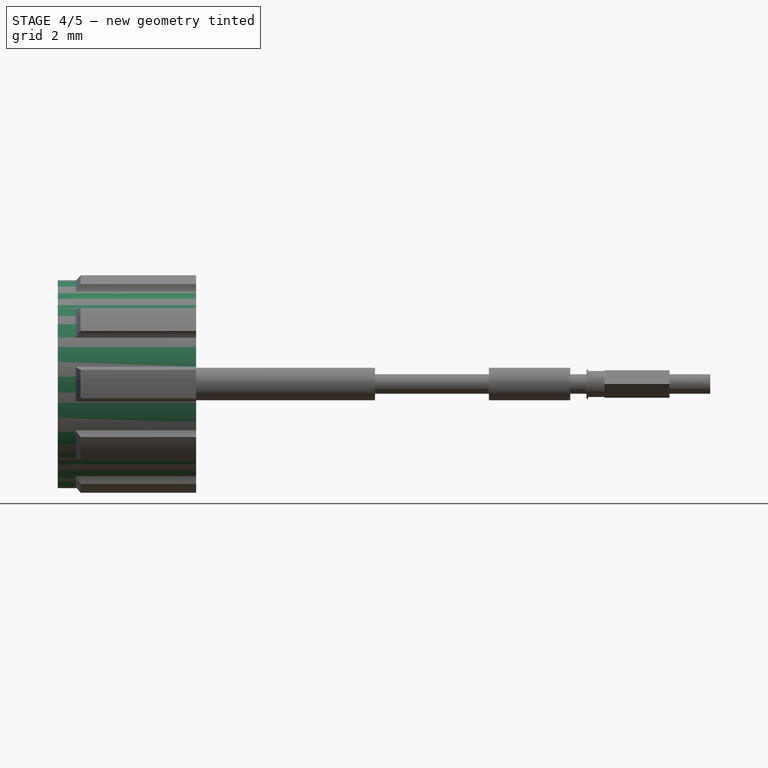
[diagram: stage 4 of 5 — front view after this stage's code; geometry added in this stage tinted green]
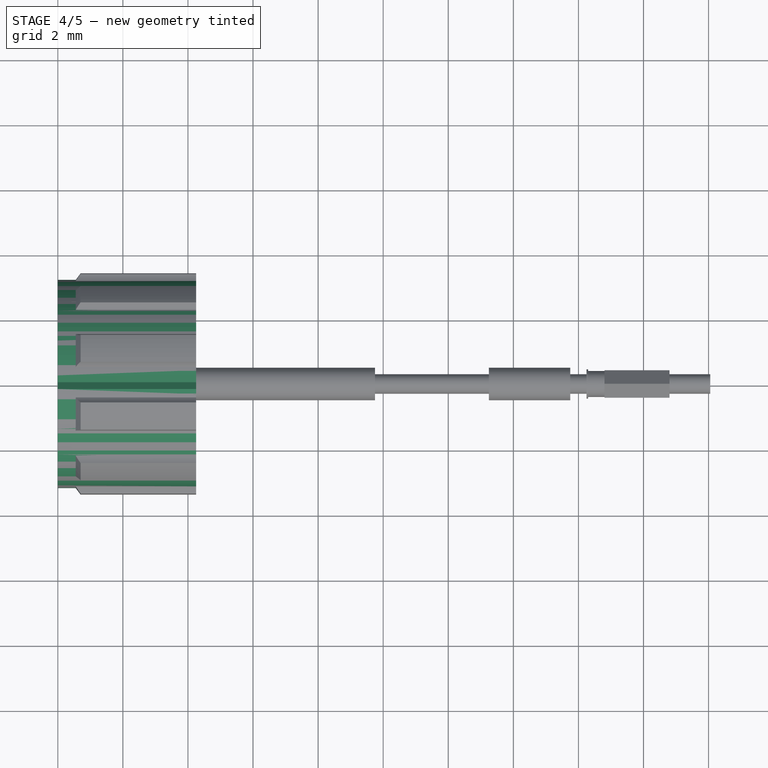
[diagram: stage 4 of 5 — top view after this stage's code; geometry added in this stage tinted green]
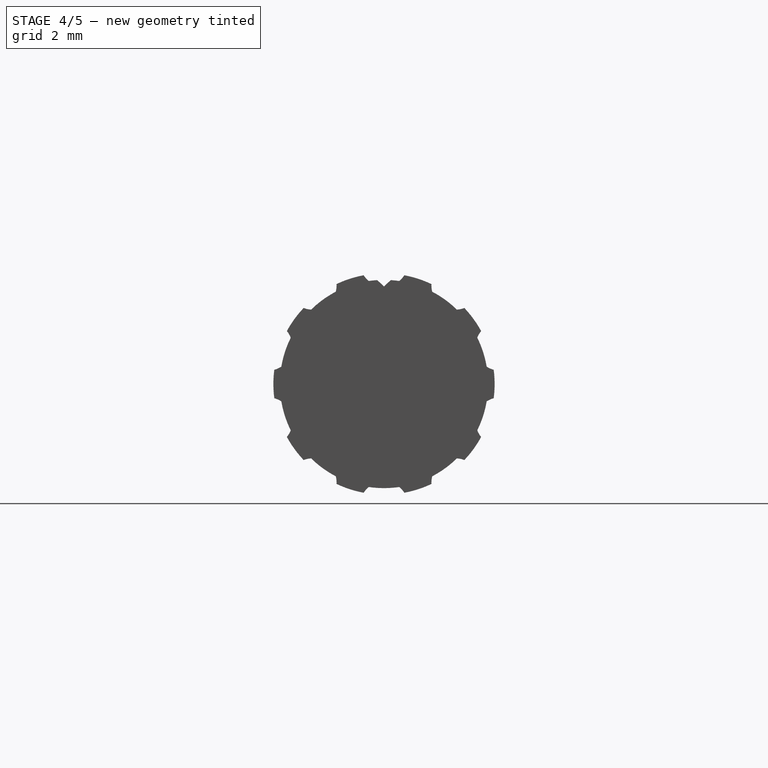
[diagram: stage 4 of 5 — right view after this stage's code; geometry added in this stage tinted green]
FEATURE [Sketcher::SketchObject] Sketch025
  MapMode = 5
  Placement = pos=(0,0,0) rot=(-0.57735,0.57735,0.57735;4.18879rad)
  Support = -> [YZ_Plane004]
  sketch-geometry (8):
    g0: GeomPoint X=0 Y=3.2 Z=0
    g1: GeomPoint X=0 Y=3 Z=0
    g2: LineSegment StartX=-0.20929 StartY=3.19315 StartZ=0 EndX=-0.20929 EndY=3.61173 EndZ=0
    g3: LineSegment StartX=-0.20929 StartY=3.61173 StartZ=0 EndX=0.20929 EndY=3.61173 EndZ=0
    g4: LineSegment StartX=0.20929 StartY=3.61173 StartZ=0 EndX=0.20929 EndY=3.19315 EndZ=0
    g5: ArcOfCircle [constr] CenterX=0 CenterY=0 CenterZ=0 NormalX=0 NormalY=0 NormalZ=1 AngleXU=0 Radius=3.2 StartAngle=1.50535 EndAngle=1.63625
    g6: LineSegment StartX=-0.20929 StartY=3.19315 StartZ=0 EndX=0 EndY=3 EndZ=0
    g7: LineSegment StartX=0 StartY=3 StartZ=0 EndX=0.20929 EndY=3.19315 EndZ=0
  constraints (20):
    c: PointOnObject(g0,g-2)
    c: PointOnObject(g1,g-2)
    c: DistanceY(g1,g0) = 0.2
    c: Vertical(g2)
    c: Coincident(g2,g3)
    c: Horizontal(g3)
    c: Coincident(g3,g4)
    c: Vertical(g4)
    c: Equal(g4,g3)
    c: Coincident(g5,g-1)
    c: Radius(g5) = 3.2
    c: PointOnObject(g0,g5)
    c: Symmetric(g4,g2,g-2)
    c: Coincident(g2,g5)
    c: Coincident(g5,g4)
    c: Coincident(g7,g6)
    c: Coincident(g6,g1)
    c: Symmetric(g6,g7,g-2)
    c: Coincident(g6,g2)
    c: Angle(g5) = 0.1309
FEATURE [Sketcher::SketchObject] Sketch
  MapMode = 5
  Placement = pos=(0,0,0) rot=(1,0,0;1.5708rad)
  Support = -> [XZ_Plane004]
  sketch-geometry (15):
    g0: LineSegment StartX=16.8 StartY=0 StartZ=0 EndX=16.8 EndY=0.4 EndZ=0
    g1: LineSegment StartX=16.8 StartY=0.4 StartZ=0 EndX=16.3 EndY=0.4 EndZ=0
    g2: LineSegment StartX=16.3 StartY=0.4 StartZ=0 EndX=16.3 EndY=0.45 EndZ=0
    g3: LineSegment StartX=16.3 StartY=0.45 StartZ=0 EndX=16.25 EndY=0.45 EndZ=0
    g4: LineSegment StartX=16.25 StartY=0.45 StartZ=0 EndX=16.25 EndY=0.3 EndZ=0
    g5: LineSegment StartX=16.25 StartY=0.3 StartZ=0 EndX=15.75 EndY=0.3 EndZ=0
    g6: LineSegment StartX=15.75 StartY=0.3 StartZ=0 EndX=15.75 EndY=0.5 EndZ=0
    g7: LineSegment StartX=15.75 StartY=0.5 StartZ=0 EndX=13.25 EndY=0.5 EndZ=0
    g8: LineSegment StartX=13.25 StartY=0.5 StartZ=0 EndX=13.25 EndY=0.3 EndZ=0
    g9: LineSegment StartX=13.25 StartY=0.3 StartZ=0 EndX=10.25 EndY=0.3 EndZ=0
    g10: LineSegment StartX=10.25 StartY=0.3 StartZ=0 EndX=10.25 EndY=0.5 EndZ=0
    g11: LineSegment StartX=10.25 StartY=0.5 StartZ=0 EndX=4.25 EndY=0.5 EndZ=0
    g12: LineSegment StartX=4.25 StartY=0.5 StartZ=0 EndX=0 EndY=0.5 EndZ=0
    g13: LineSegment StartX=0 StartY=0.5 StartZ=0 EndX=0 EndY=0 EndZ=0
    g14: LineSegment StartX=0 StartY=0 StartZ=0 EndX=16.8 EndY=0 EndZ=0
FEATURE [Sketcher::SketchObject] Sketch027
  AttachmentOffset = pos=(0,0,16.8) rot=(0,0,1;0rad)
  MapMode = 5
  Placement = pos=(16.8,-3.7e-15,3.7e-15) rot=(0.57735,0.57735,0.57735;2.0944rad)
  Support = -> [YZ_Plane004]
  sketch-geometry (4):
    g0: LineSegment StartX=-0.424264 StartY=0 StartZ=0 EndX=0 EndY=0.424264 EndZ=0
    g1: LineSegment StartX=0 StartY=0.424264 StartZ=0 EndX=0.424264 EndY=0 EndZ=0
    g2: LineSegment StartX=0.424264 StartY=0 StartZ=0 EndX=0 EndY=-0.424264 EndZ=0
    g3: LineSegment StartX=0 StartY=-0.424264 StartZ=0 EndX=-0.424264 EndY=0 EndZ=0
  constraints (11):
    c: PointOnObject(g0,g-1)
    c: PointOnObject(g0,g-2)
    c: Coincident(g0,g1)
    c: Coincident(g1,g2)
    c: PointOnObject(g2,g-2)
    c: Coincident(g2,g3)
    c: Coincident(g3,g0)
    c: Perpendicular(g1,g0)
    c: Perpendicular(g3,g2)
    c: Symmetric(g0,g1,g-1)
    c: Distance(g0) = 0.6
FEATURE [Sketcher::SketchObject] Sketch028
  AttachmentOffset = pos=(0,0,18.8) rot=(0,0,1;0rad)
  MapMode = 5
  Placement = pos=(18.8,-4.2e-15,4.2e-15) rot=(0.57735,0.57735,0.57735;2.0944rad)
  Support = -> [YZ_Plane004]
  sketch-geometry (1):
    g0: Circle CenterX=0 CenterY=0 CenterZ=0 NormalX=0 NormalY=0 NormalZ=1 AngleXU=0 Radius=0.3
  constraints (2):
    c: Coincident(g0,g-1)
    c: Radius(g0) = 0.3
FEATURE [Sketcher::SketchObject] Sketch029
  MapMode = 5
  Placement = pos=(0,0,0) rot=(1,0,0;1.5708rad)
  Support = -> [XZ_Plane004]
  sketch-geometry (6):
    g0: LineSegment StartX=0.5 StartY=0 StartZ=0 EndX=0 EndY=0 EndZ=0
    g1: LineSegment StartX=0 StartY=0 StartZ=0 EndX=0 EndY=3.2 EndZ=0
    g2: LineSegment StartX=0 StartY=3.2 StartZ=0 EndX=4.25 EndY=3.2 EndZ=0
    g3: LineSegment StartX=4.25 StartY=3.2 StartZ=0 EndX=4.25 EndY=2.7 EndZ=0
    g4: LineSegment StartX=4.25 StartY=2.7 StartZ=0 EndX=0.5 EndY=2.7 EndZ=0
    g5: LineSegment StartX=0.5 StartY=2.7 StartZ=0 EndX=0.5 EndY=0 EndZ=0
  constraints (17):
    c: PointOnObject(g0,g-1)
    c: Coincident(g0,g-1)
    c: Coincident(g0,g1)
    c: PointOnObject(g1,g-2)
    c: Coincident(g1,g2)
    c: Horizontal(g2)
    c: Coincident(g2,g3)
    c: Vertical(g3)
    c: Coincident(g3,g4)
    c: Horizontal(g4)
    c: Coincident(g4,g5)
    c: Coincident(g5,g0)
    c: Vertical(g5)
    c: DistanceY(g3) = 2.7
    c: DistanceY(g2) = 3.2
    c: DistanceX(g2,g2) = 4.25
    c: Equal(g0,g3)
FEATURE [PartDesign::Revolution] Revolution
  Angle = 360
  Axis = (1,0,0)
  Base = (0,0,0)
  Placement = pos=(0,0,0) rot=(1,0,0;1.5708rad)
  Profile = -> Sketch029
  ReferenceAxis = -> X_Axis004
  Reversed = true
FEATURE [PartDesign::Pocket] Pocket
  BaseFeature = -> Revolution
  Length = 5
  Length2 = 100
  Placement = pos=(0,0,0) rot=(1,0,0;1.5708rad)
  Profile = -> Sketch025
  Type = 0
FEATURE [PartDesign::Pad] Pad002
  BaseFeature = -> Revolution003
  Length = 2
  Length2 = 100
  Placement = pos=(0,0,0) rot=(1,0,0;1.5708rad)
  Profile = -> Sketch032
  Type = 0
FEATURE [PartDesign::Pad] Pad003
  BaseFeature = -> Pad002
  Length = 1.25
  Length2 = 100
  Placement = pos=(0,0,0) rot=(1,0,0;1.5708rad)
  Profile = -> Sketch033
  Type = 0
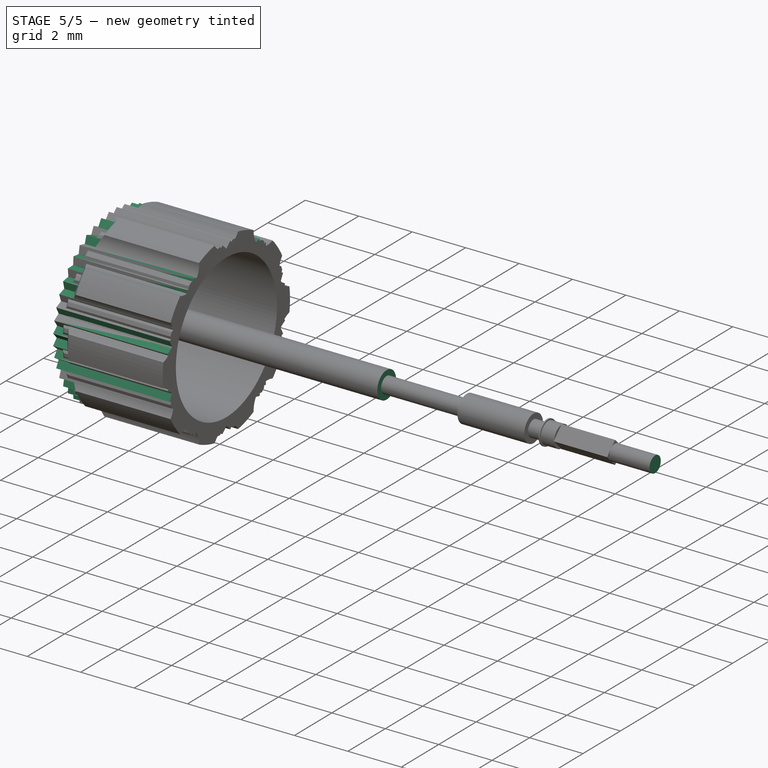
[diagram: stage 5 of 5 — iso view after this stage's code; geometry added in this stage tinted green]
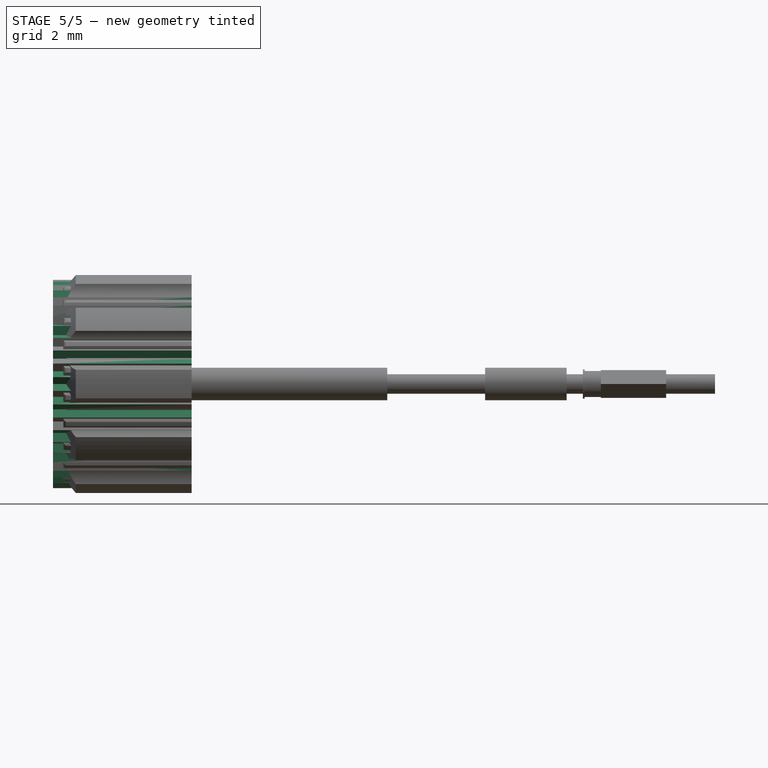
[diagram: stage 5 of 5 — front view after this stage's code; geometry added in this stage tinted green]
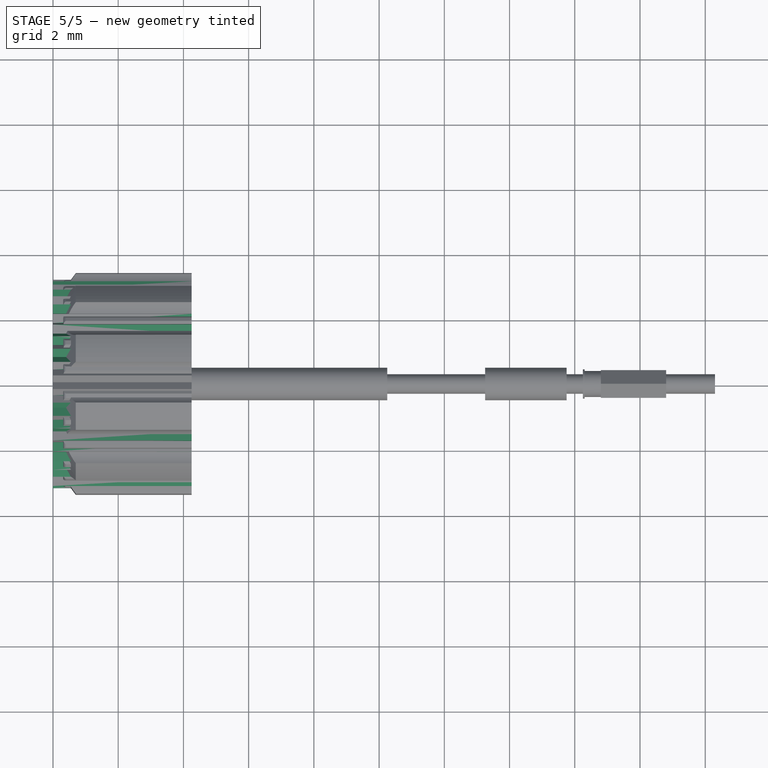
[diagram: stage 5 of 5 — top view after this stage's code; geometry added in this stage tinted green]
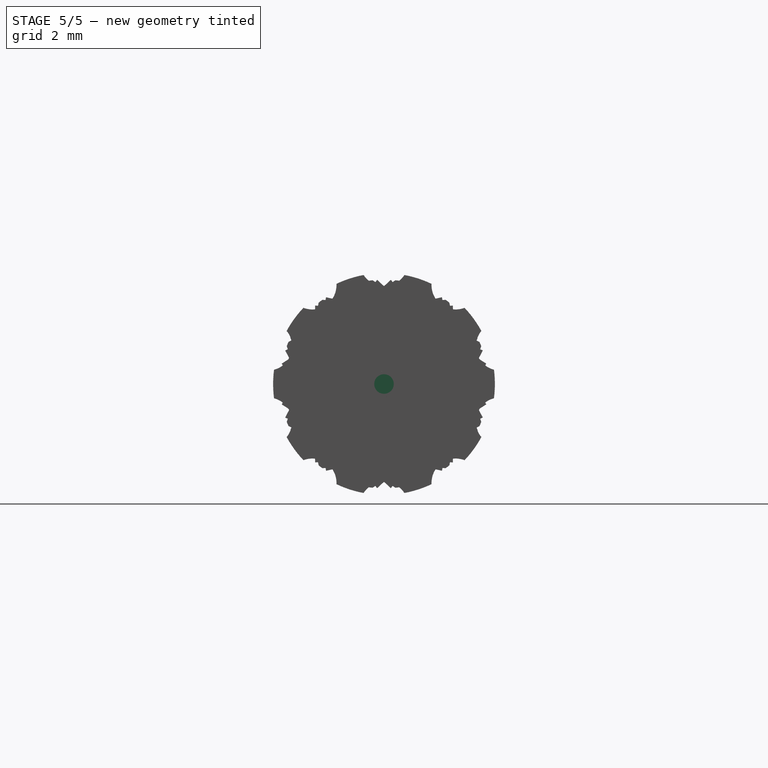
[diagram: stage 5 of 5 — right view after this stage's code; geometry added in this stage tinted green]
FEATURE [PartDesign::PolarPattern] PolarPattern
  Angle = 360
  Axis = -> Sketch025 [N_Axis]
  BaseFeature = -> Pocket
  Occurrences = 48
  Originals = -> [Pocket]
  Placement = pos=(0,0,0) rot=(1,0,0;1.5708rad)
FEATURE [PartDesign::Revolution] Revolution001
  Angle = 360
  Axis = (1,0,0)
  Base = (0,0,0)
  BaseFeature = -> PolarPattern
  Placement = pos=(0,0,0) rot=(1,0,0;1.5708rad)
  Profile = -> Sketch
  ReferenceAxis = -> X_Axis004
  Refine = true
  Reversed = true
FEATURE [PartDesign::Pad] Pad
  BaseFeature = -> Revolution001
  Length = 2
  Length2 = 100
  Placement = pos=(0,0,0) rot=(1,0,0;1.5708rad)
  Profile = -> Sketch027
  Type = 0
FEATURE [PartDesign::Pad] Pad001
  BaseFeature = -> Pad
  Length = 1.5
  Length2 = 100
  Placement = pos=(0,0,0) rot=(1,0,0;1.5708rad)
  Profile = -> Sketch028
  Type = 0
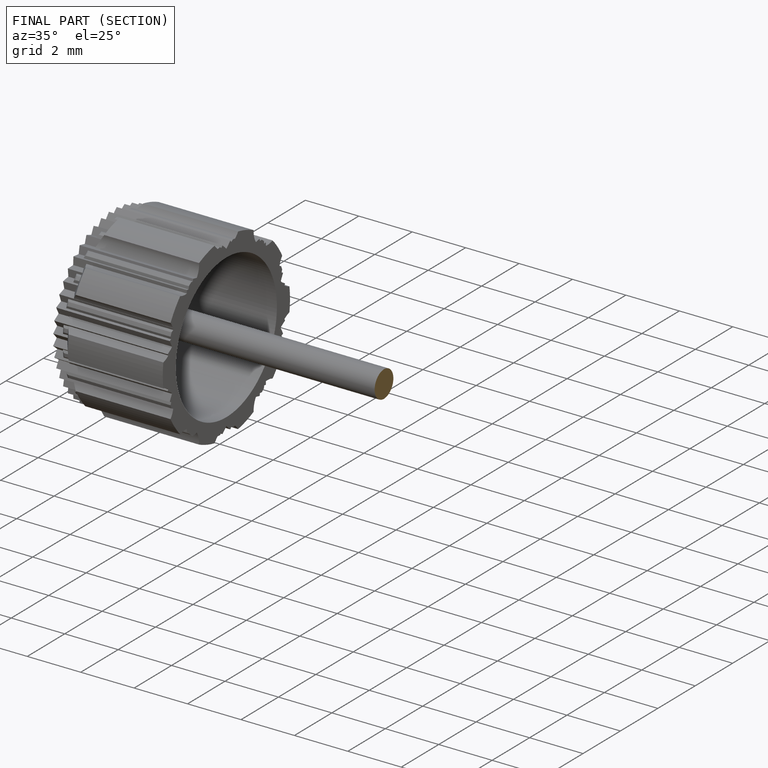
[diagram: finished part — half-section view (interior)]
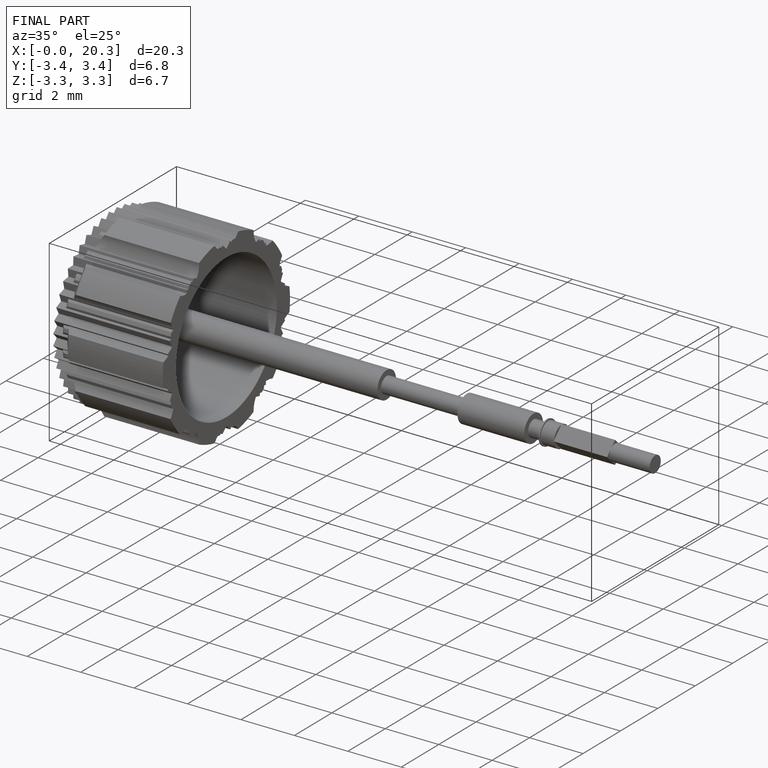
[diagram: finished part — iso view with bounding-box wireframe]
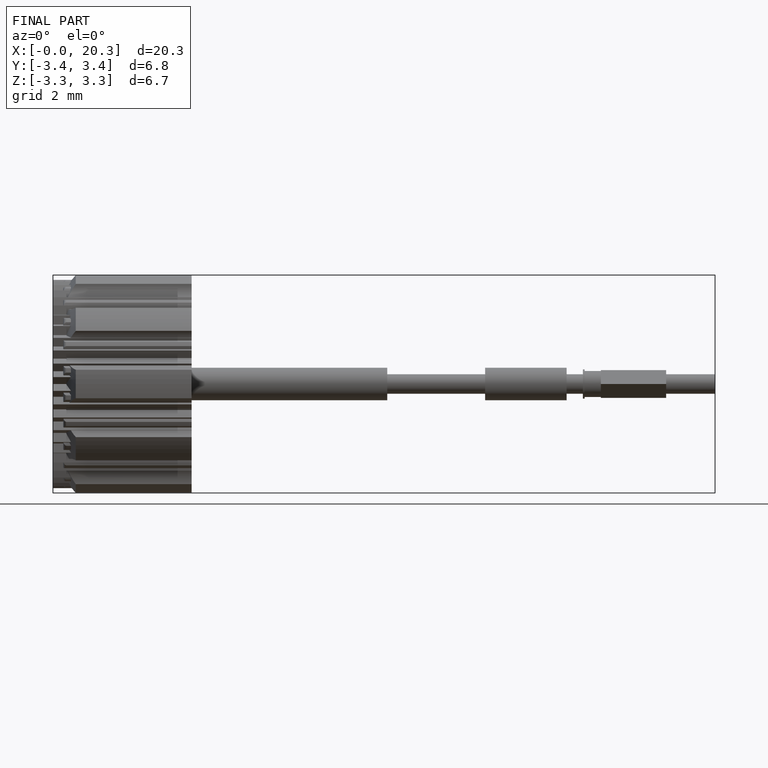
[diagram: finished part — front view with bounding-box wireframe]
